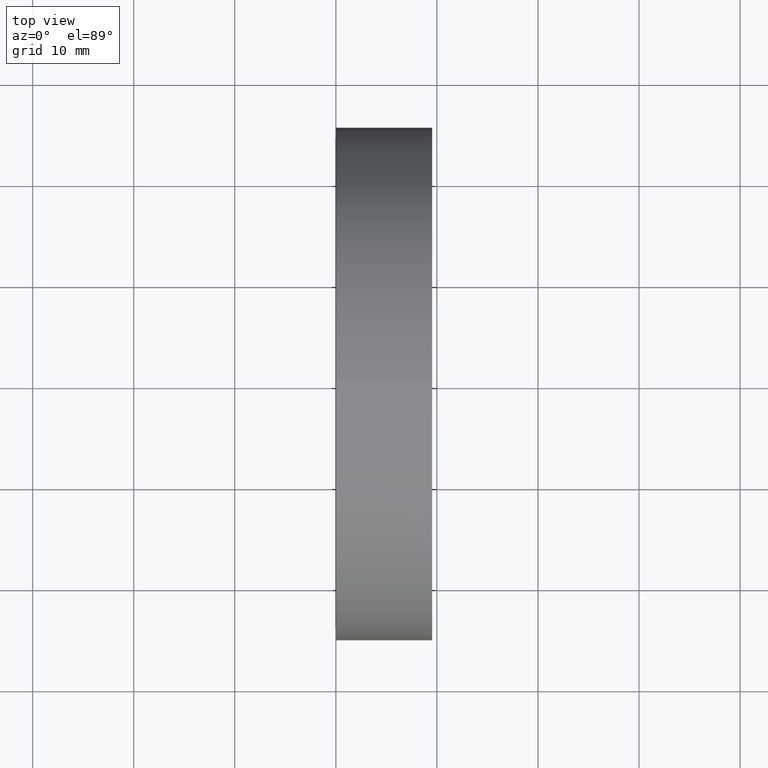
[diagram: clean part render]
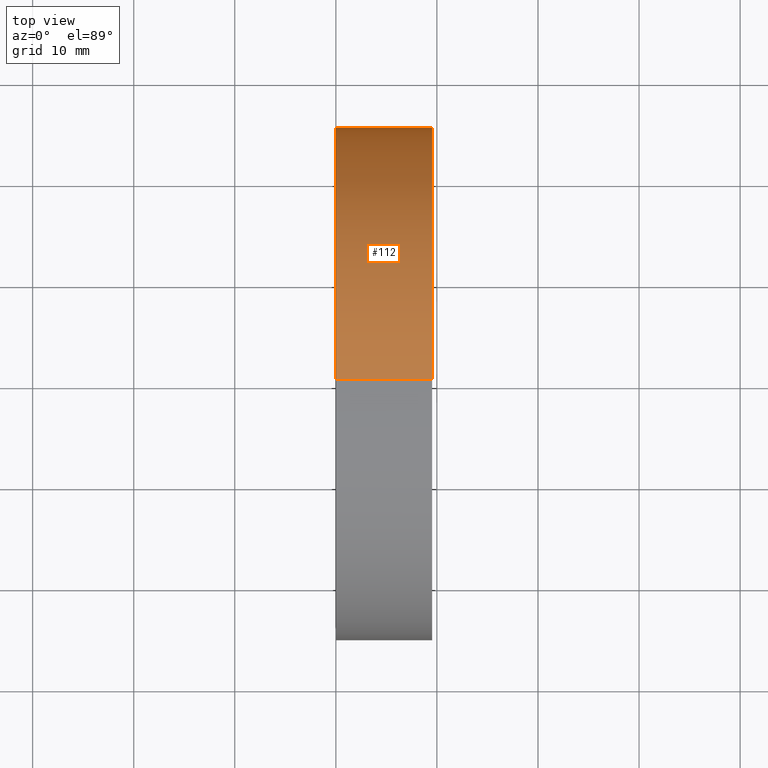
[diagram: same view with one face highlighted and labeled with its STEP entity id]
A machine part, top view. The second image highlights one B-rep face of the part: STEP entity #112.
In plain terms, the highlighted cylindrical surface (partial cylindrical patch) has radius 25.4 mm, axis along (-1, -0, -0).
Its self-contained STEP definition (entity closure, byte-faithful):
#1 = ORIENTED_EDGE ( 'NONE', *, *, #132, .T. ) ;
#5 = DIRECTION ( 'NONE',  ( -1.000000000000000000, -0.0000000000000000000, -0.0000000000000000000 ) ) ;
#14 = VERTEX_POINT ( 'NONE', #116 ) ;
#19 = DIRECTION ( 'NONE',  ( -1.000000000000000000, -0.0000000000000000000, -0.0000000000000000000 ) ) ;
#26 = CIRCLE ( 'NONE', #44, 25.40000000000006300 ) ;
#31 = DIRECTION ( 'NONE',  ( 0.0000000000000000000, 0.0000000000000000000, 1.000000000000000000 ) ) ;
#32 = LINE ( 'NONE', #135, #63 ) ;
#34 = DIRECTION ( 'NONE',  ( -1.000000000000000000, -0.0000000000000000000, -0.0000000000000000000 ) ) ;
#42 = ORIENTED_EDGE ( 'NONE', *, *, #107, .F. ) ;
#44 = AXIS2_PLACEMENT_3D ( 'NONE', #108, #5, #31 ) ;
#53 = DIRECTION ( 'NONE',  ( -1.000000000000000000, -0.0000000000000000000, -0.0000000000000000000 ) ) ;
#54 = ORIENTED_EDGE ( 'NONE', *, *, #99, .F. ) ;
#57 = LINE ( 'NONE', #136, #91 ) ;
#61 = CARTESIAN_POINT ( 'NONE',  ( 9.529578164691605100, 3.110602869834284000E-015, -25.40000000000005500 ) ) ;
#63 = VECTOR ( 'NONE', #19, 1000.000000000000000 ) ;
#68 = VERTEX_POINT ( 'NONE', #61 ) ;
#73 = CARTESIAN_POINT ( 'NONE',  ( 0.0000000000000000000, 0.0000000000000000000, 0.0000000000000000000 ) ) ;
#74 = CARTESIAN_POINT ( 'NONE',  ( 0.0000000000000000000, 0.0000000000000000000, 0.0000000000000000000 ) ) ;
#82 = EDGE_CURVE ( 'NONE', #14, #68, #26, .T. ) ;
#86 = VERTEX_POINT ( 'NONE', #113 ) ;
#88 = CIRCLE ( 'NONE', #162, 25.39999999999999900 ) ;
#89 = VERTEX_POINT ( 'NONE', #151 ) ;
#90 = ORIENTED_EDGE ( 'NONE', *, *, #82, .T. ) ;
#91 = VECTOR ( 'NONE', #34, 1000.000000000000000 ) ;
#99 = EDGE_CURVE ( 'NONE', #14, #89, #57, .T. ) ;
#106 = EDGE_LOOP ( 'NONE', ( #90, #1, #42, #54 ) ) ;
#107 = EDGE_CURVE ( 'NONE', #89, #86, #88, .T. ) ;
#108 = CARTESIAN_POINT ( 'NONE',  ( 9.529578164691605100, 0.0000000000000000000, 0.0000000000000000000 ) ) ;
#112 = ADVANCED_FACE ( 'NONE', ( #128 ), #166, .T. ) ;
#113 = CARTESIAN_POINT ( 'NONE',  ( 0.0000000000000000000, 3.110602869834279200E-015, -25.39999999999999900 ) ) ;
#116 = CARTESIAN_POINT ( 'NONE',  ( 9.529578164691605100, 0.0000000000000000000, 25.40000000000005500 ) ) ;
#128 = FACE_OUTER_BOUND ( 'NONE', #106, .T. ) ;
#132 = EDGE_CURVE ( 'NONE', #68, #86, #32, .T. ) ;
#135 = CARTESIAN_POINT ( 'NONE',  ( 0.0000000000000000000, 3.110602869834280800E-015, -25.40000000000003100 ) ) ;
#136 = CARTESIAN_POINT ( 'NONE',  ( 0.0000000000000000000, 0.0000000000000000000, 25.40000000000003100 ) ) ;
#139 = DIRECTION ( 'NONE',  ( -1.000000000000000000, -0.0000000000000000000, -0.0000000000000000000 ) ) ;
#145 = DIRECTION ( 'NONE',  ( 0.0000000000000000000, 0.0000000000000000000, 1.000000000000000000 ) ) ;
#146 = AXIS2_PLACEMENT_3D ( 'NONE', #73, #139, #145 ) ;
#151 = CARTESIAN_POINT ( 'NONE',  ( 0.0000000000000000000, 0.0000000000000000000, 25.39999999999999900 ) ) ;
#162 = AXIS2_PLACEMENT_3D ( 'NONE', #74, #53, #163 ) ;
#163 = DIRECTION ( 'NONE',  ( 0.0000000000000000000, 0.0000000000000000000, 1.000000000000000000 ) ) ;
#166 = CYLINDRICAL_SURFACE ( 'NONE', #146, 25.40000000000003100 ) ;